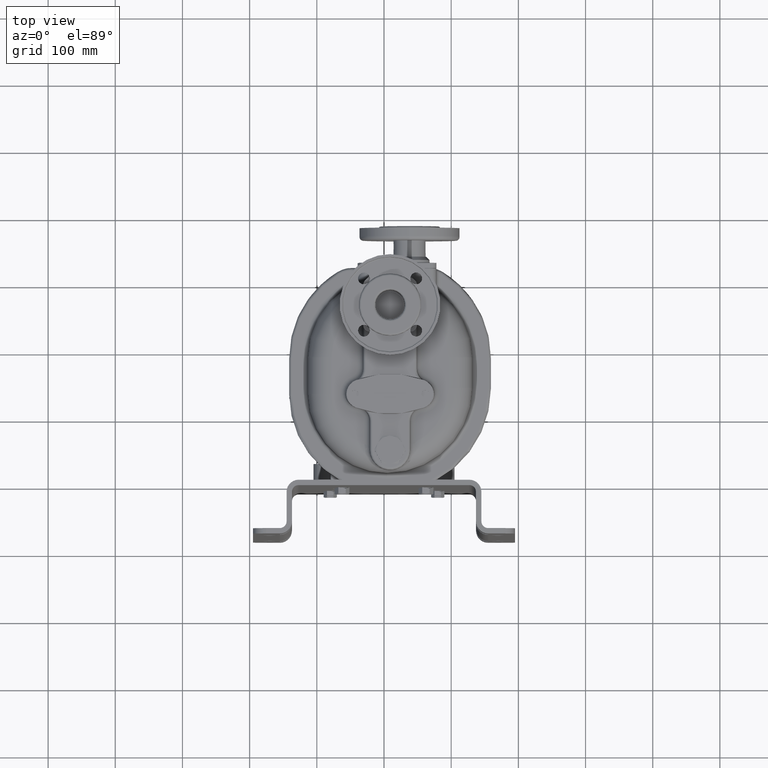
[diagram: clean part render]
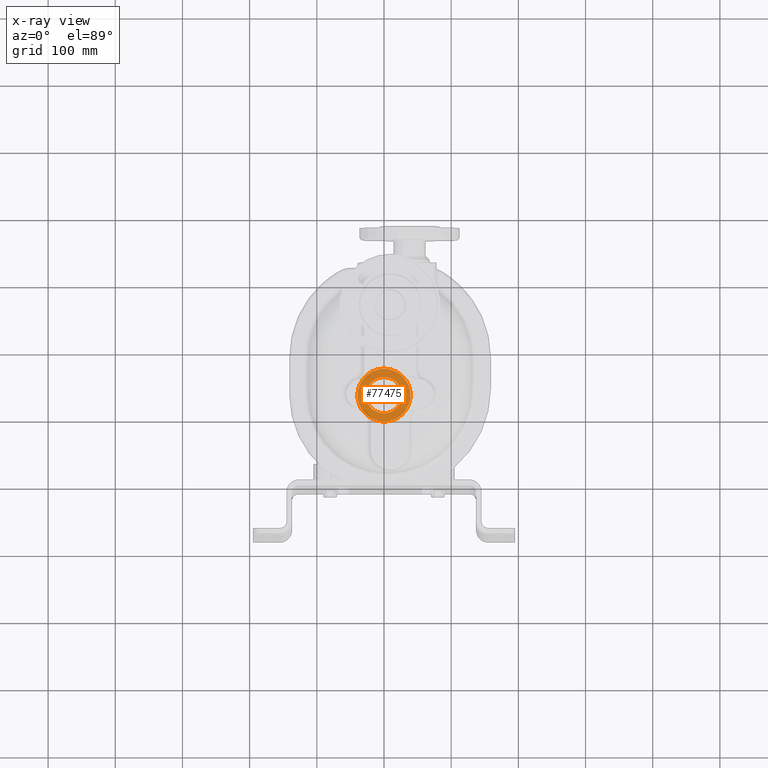
[diagram: x-ray — body ghosted, one internal face saturated and labeled with its STEP entity id]
A machine part, top view, then the same camera in x-ray: the body is ghosted and one INTERNAL B-rep face — a face not visible from any outside direction — is saturated and labeled: STEP entity #77475.
In plain terms, the highlighted planar face has unit normal (0, 0, 1).
Its self-contained STEP definition (entity closure, byte-faithful):
#11593=CARTESIAN_POINT('',(0.E0,1.32E2,-1.63E2));
#11594=DIRECTION('',(0.E0,0.E0,-1.E0));
#11595=DIRECTION('',(0.E0,-1.E0,0.E0));
#11596=AXIS2_PLACEMENT_3D('',#11593,#11594,#11595);
#11598=CARTESIAN_POINT('',(0.E0,1.32E2,-1.63E2));
#11599=DIRECTION('',(0.E0,0.E0,-1.E0));
#11600=DIRECTION('',(0.E0,1.E0,0.E0));
#11601=AXIS2_PLACEMENT_3D('',#11598,#11599,#11600);
#11603=CARTESIAN_POINT('',(0.E0,1.32E2,-1.63E2));
#11604=DIRECTION('',(0.E0,0.E0,1.E0));
#11605=DIRECTION('',(0.E0,-1.E0,0.E0));
#11606=AXIS2_PLACEMENT_3D('',#11603,#11604,#11605);
#11608=CARTESIAN_POINT('',(0.E0,1.32E2,-1.63E2));
#11609=DIRECTION('',(0.E0,0.E0,1.E0));
#11610=DIRECTION('',(0.E0,1.E0,0.E0));
#11611=AXIS2_PLACEMENT_3D('',#11608,#11609,#11610);
#70449=CARTESIAN_POINT('',(0.E0,9.25E1,-1.63E2));
#70450=CARTESIAN_POINT('',(-1.451207069313E-14,1.715E2,-1.63E2));
#70451=VERTEX_POINT('',#70449);
#70452=VERTEX_POINT('',#70450);
#70465=CARTESIAN_POINT('',(3.059390392407E-14,1.05E2,-1.63E2));
#70466=CARTESIAN_POINT('',(-1.529696114688E-14,1.59E2,-1.63E2));
#70467=VERTEX_POINT('',#70465);
#70468=VERTEX_POINT('',#70466);
#77459=CARTESIAN_POINT('',(0.E0,1.32E2,-1.63E2));
#77460=DIRECTION('',(0.E0,0.E0,1.E0));
#77461=DIRECTION('',(0.E0,-1.E0,0.E0));
#77462=AXIS2_PLACEMENT_3D('',#77459,#77460,#77461);
#77463=PLANE('',#77462);
#77465=ORIENTED_EDGE('',*,*,#77464,.T.);
#77467=ORIENTED_EDGE('',*,*,#77466,.T.);
#77468=EDGE_LOOP('',(#77465,#77467));
#77469=FACE_OUTER_BOUND('',#77468,.F.);
#77470=ORIENTED_EDGE('',*,*,#77449,.T.);
#77472=ORIENTED_EDGE('',*,*,#77471,.T.);
#77473=EDGE_LOOP('',(#77470,#77472));
#77474=FACE_BOUND('',#77473,.F.);
#77475=ADVANCED_FACE('',(#77469,#77474),#77463,.T.);
#11597=CIRCLE('',#11596,3.95E1);
#11602=CIRCLE('',#11601,3.95E1);
#11607=CIRCLE('',#11606,2.7E1);
#11612=CIRCLE('',#11611,2.7E1);
#77449=EDGE_CURVE('',#70467,#70468,#11607,.T.);
#77464=EDGE_CURVE('',#70451,#70452,#11597,.T.);
#77466=EDGE_CURVE('',#70452,#70451,#11602,.T.);
#77471=EDGE_CURVE('',#70468,#70467,#11612,.T.);